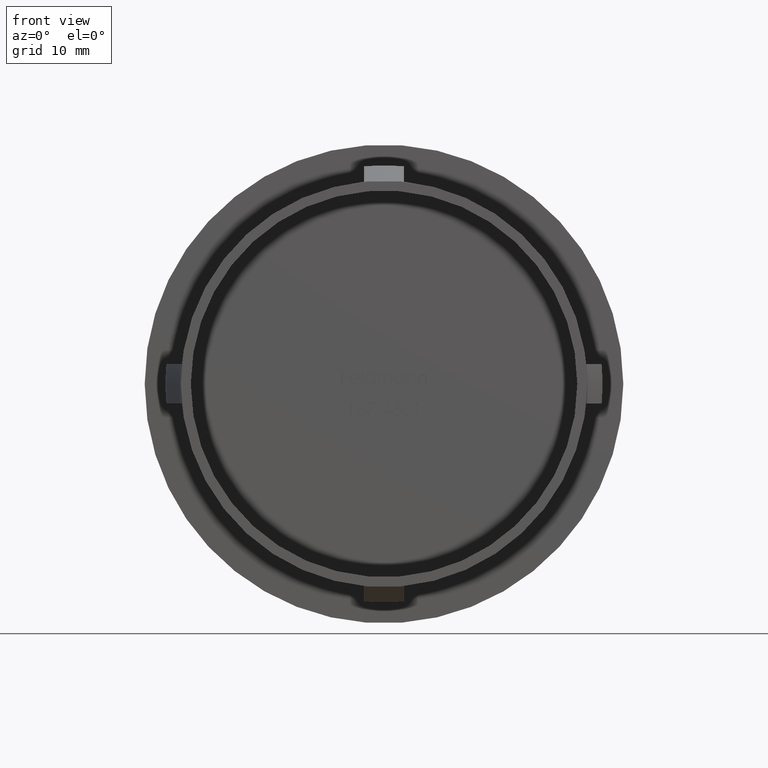
[diagram: clean part render]
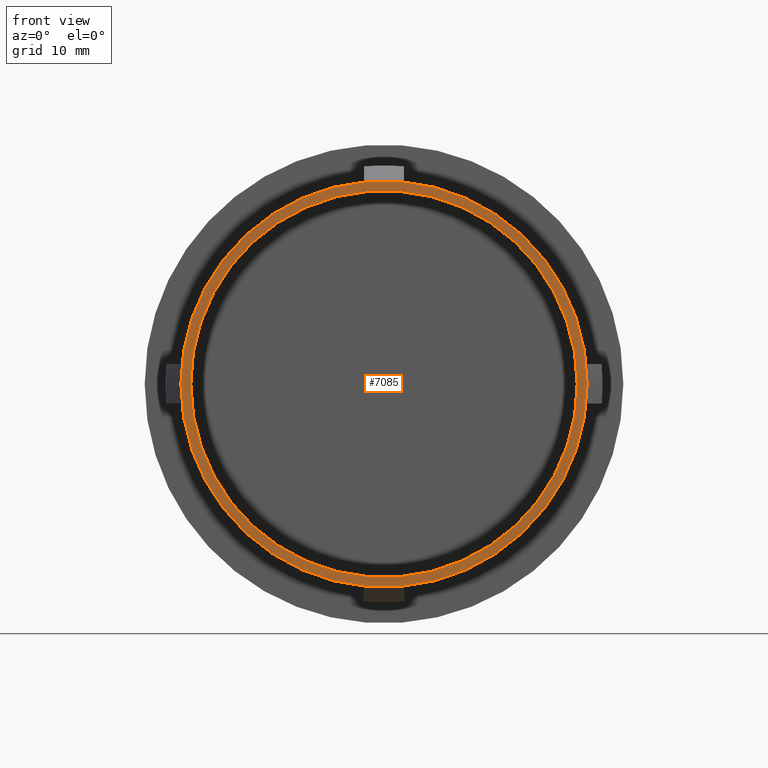
[diagram: same view with one face highlighted and labeled with its STEP entity id]
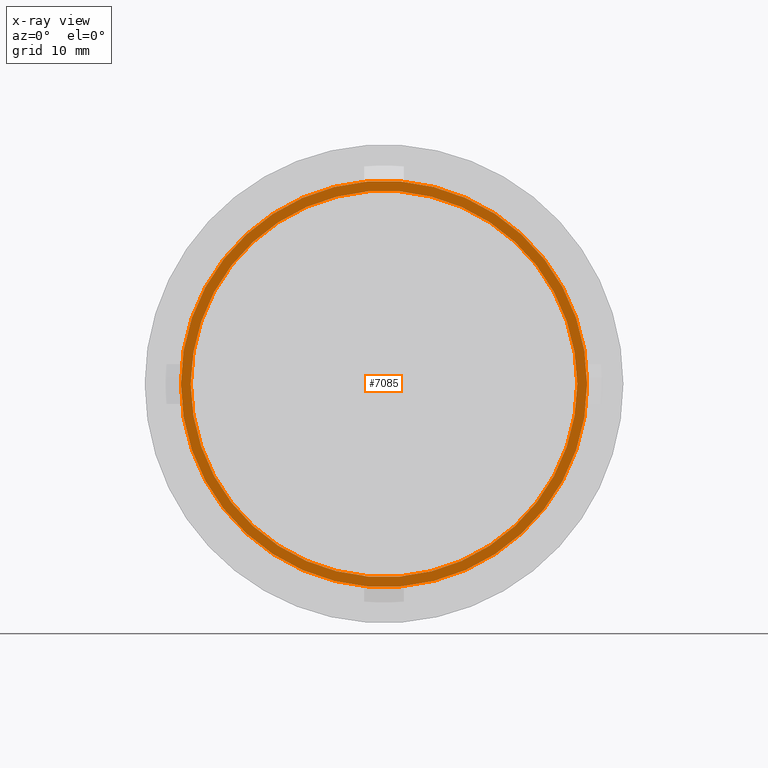
[diagram: x-ray of the same camera — body ghosted, the highlighted face saturated]
A machine part, front view. The second image highlights one B-rep face of the part: STEP entity #7085.
The next image is the same camera in x-ray: the body ghosted, the highlighted face saturated — about 0% of this face is hidden behind the body in this view.
In plain terms, the highlighted planar face has unit normal (-0, 1, 0).
Its self-contained STEP definition (entity closure, byte-faithful):
#28 = PLANE ( 'NONE',  #1284 ) ;
#76 = CARTESIAN_POINT ( 'NONE',  ( 19.50000000000000400, -8.572527594031492900E-017, 0.0000000000000000000 ) ) ;
#125 = VERTEX_POINT ( 'NONE', #10366 ) ;
#238 = EDGE_CURVE ( 'NONE', #11639, #8793, #9881, .T. ) ;
#292 = DIRECTION ( 'NONE',  ( -1.714505518806297100E-016, 1.000000000000000000, -0.0000000000000000000 ) ) ;
#526 = ORIENTED_EDGE ( 'NONE', *, *, #238, .T. ) ;
#1261 = CARTESIAN_POINT ( 'NONE',  ( -19.49999999999999600, -6.812732713625892700E-015, 0.0000000000000000000 ) ) ;
#1284 = AXIS2_PLACEMENT_3D ( 'NONE', #76, #2147, #6442 ) ;
#1388 = VERTEX_POINT ( 'NONE', #10804 ) ;
#1576 = DIRECTION ( 'NONE',  ( -1.714505518806297100E-016, 1.000000000000000000, -0.0000000000000000000 ) ) ;
#2147 = DIRECTION ( 'NONE',  ( -1.714505518806297100E-016, 1.000000000000000000, 0.0000000000000000000 ) ) ;
#2491 = CIRCLE ( 'NONE', #13189, 19.50000000000000000 ) ;
#3222 = FACE_BOUND ( 'NONE', #12997, .T. ) ;
#4280 = CARTESIAN_POINT ( 'NONE',  ( 19.50000000000000400, -1.261611902813349400E-016, 2.388061258337339300E-015 ) ) ;
#4514 = AXIS2_PLACEMENT_3D ( 'NONE', #7594, #6481, #14106 ) ;
#4948 = DIRECTION ( 'NONE',  ( -1.000000000000000000, -1.714505518806296900E-016, 0.0000000000000000000 ) ) ;
#5951 = CARTESIAN_POINT ( 'NONE',  ( 4.589976203204287100E-015, -3.469446951953614200E-015, 0.0000000000000000000 ) ) ;
#6131 = ORIENTED_EDGE ( 'NONE', *, *, #13870, .F. ) ;
#6366 = AXIS2_PLACEMENT_3D ( 'NONE', #11636, #7301, #9529 ) ;
#6442 = DIRECTION ( 'NONE',  ( -1.000000000000000000, -1.714505518806297100E-016, 0.0000000000000000000 ) ) ;
#6481 = DIRECTION ( 'NONE',  ( -1.714505518806297100E-016, 1.000000000000000000, -0.0000000000000000000 ) ) ;
#6762 = ORIENTED_EDGE ( 'NONE', *, *, #11627, .F. ) ;
#7085 = ADVANCED_FACE ( 'NONE', ( #3222, #11587 ), #28, .F. ) ;
#7301 = DIRECTION ( 'NONE',  ( -1.714505518806297100E-016, 1.000000000000000000, -0.0000000000000000000 ) ) ;
#7532 = EDGE_LOOP ( 'NONE', ( #6762, #6131 ) ) ;
#7594 = CARTESIAN_POINT ( 'NONE',  ( 4.589976203204287100E-015, -3.469446951953614200E-015, 0.0000000000000000000 ) ) ;
#8086 = ORIENTED_EDGE ( 'NONE', *, *, #9584, .T. ) ;
#8415 = CIRCLE ( 'NONE', #6366, 20.50000000000000000 ) ;
#8793 = VERTEX_POINT ( 'NONE', #1261 ) ;
#9529 = DIRECTION ( 'NONE',  ( -1.000000000000000000, -1.714505518806297600E-016, 0.0000000000000000000 ) ) ;
#9584 = EDGE_CURVE ( 'NONE', #8793, #11639, #2491, .T. ) ;
#9881 = CIRCLE ( 'NONE', #10666, 19.50000000000000000 ) ;
#10366 = CARTESIAN_POINT ( 'NONE',  ( 20.50000000000000700, 4.528936159929513800E-017, 2.510525938252074900E-015 ) ) ;
#10666 = AXIS2_PLACEMENT_3D ( 'NONE', #11323, #1576, #4948 ) ;
#10804 = CARTESIAN_POINT ( 'NONE',  ( -20.49999999999999600, -6.984183265506524500E-015, 0.0000000000000000000 ) ) ;
#11248 = DIRECTION ( 'NONE',  ( -1.000000000000000000, -1.714505518806296900E-016, 0.0000000000000000000 ) ) ;
#11323 = CARTESIAN_POINT ( 'NONE',  ( 4.589976203204287100E-015, -3.469446951953614200E-015, 0.0000000000000000000 ) ) ;
#11587 = FACE_OUTER_BOUND ( 'NONE', #7532, .T. ) ;
#11627 = EDGE_CURVE ( 'NONE', #1388, #125, #13206, .T. ) ;
#11636 = CARTESIAN_POINT ( 'NONE',  ( 4.589976203204287100E-015, -3.469446951953614200E-015, 0.0000000000000000000 ) ) ;
#11639 = VERTEX_POINT ( 'NONE', #4280 ) ;
#12997 = EDGE_LOOP ( 'NONE', ( #8086, #526 ) ) ;
#13189 = AXIS2_PLACEMENT_3D ( 'NONE', #5951, #292, #11248 ) ;
#13206 = CIRCLE ( 'NONE', #4514, 20.50000000000000000 ) ;
#13870 = EDGE_CURVE ( 'NONE', #125, #1388, #8415, .T. ) ;
#14106 = DIRECTION ( 'NONE',  ( -1.000000000000000000, -1.714505518806297600E-016, 0.0000000000000000000 ) ) ;